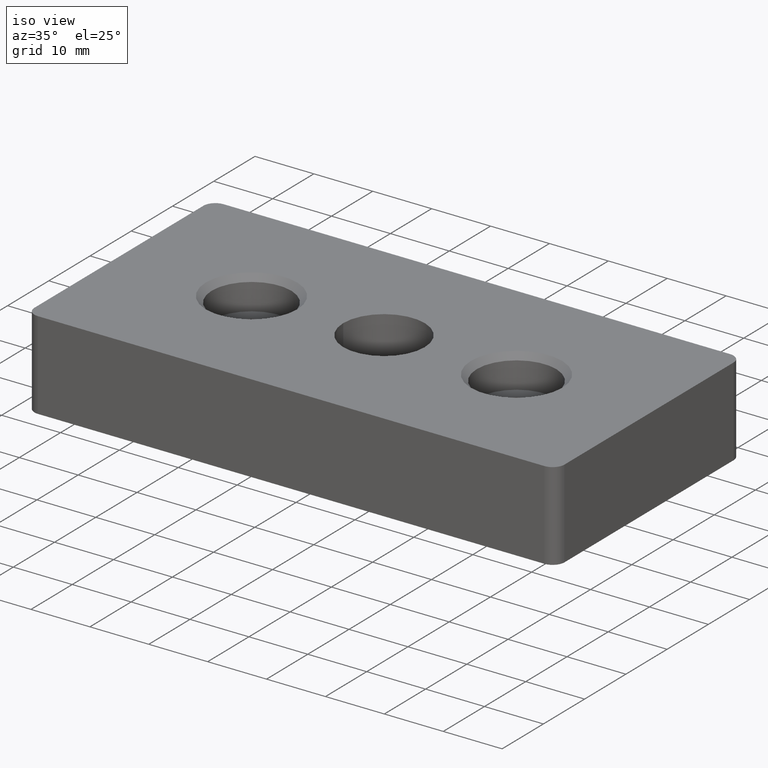
[diagram: clean part render]
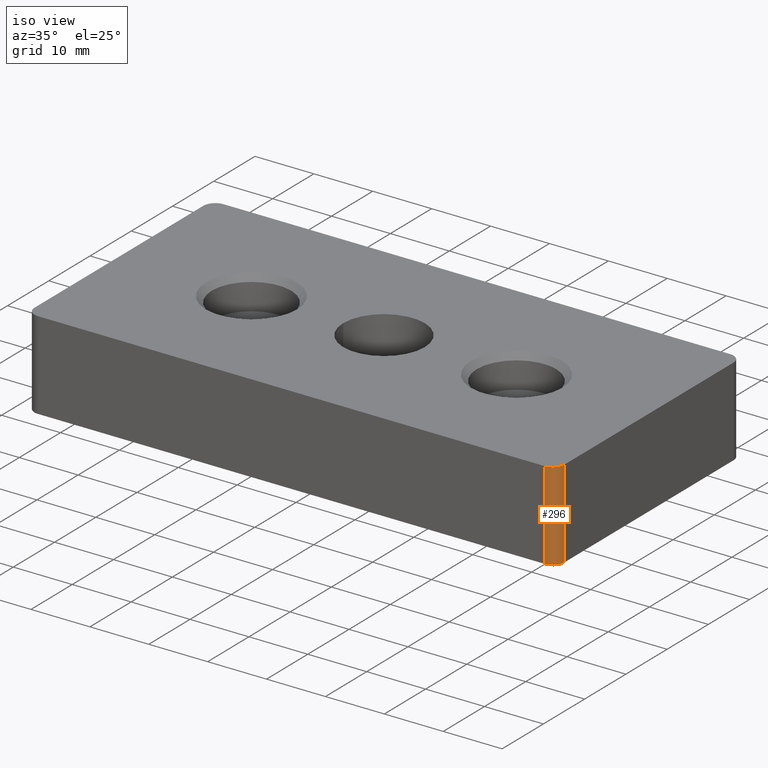
[diagram: same view with one face highlighted and labeled with its STEP entity id]
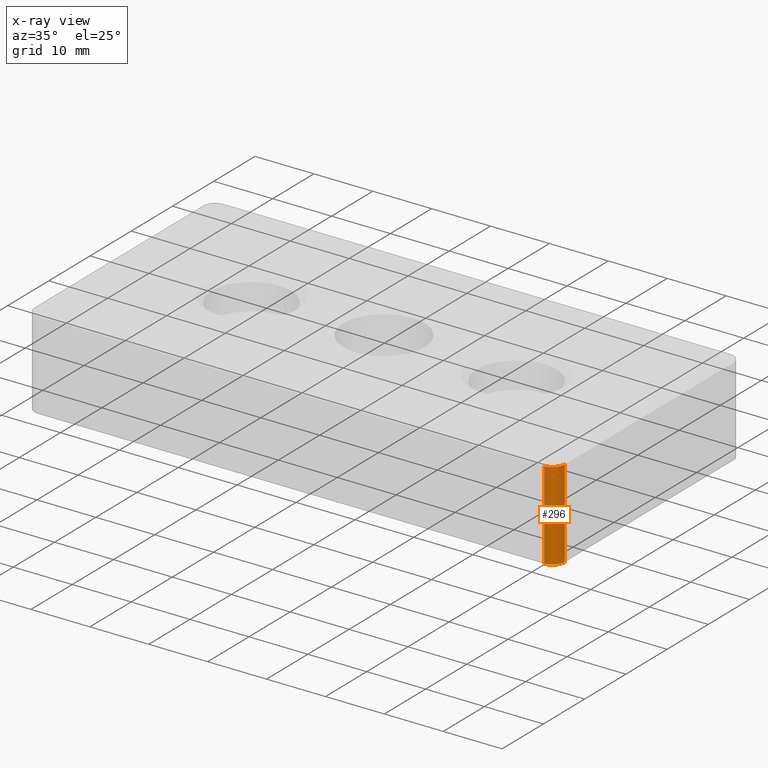
[diagram: x-ray of the same camera — body ghosted, the highlighted face saturated]
A machine part, iso view. The second image highlights one B-rep face of the part: STEP entity #296.
The next image is the same camera in x-ray: the body ghosted, the highlighted face saturated — about 0% of this face is hidden behind the body in this view.
In plain terms, the highlighted cylindrical surface (edge-blend (fillet) strip) has radius 2 mm, axis along (0, 0, 1).
Its self-contained STEP definition (entity closure, byte-faithful):
#18=CYLINDRICAL_SURFACE('',#329,2.);
#28=LINE('',#487,#44);
#29=LINE('',#490,#45);
#44=VECTOR('',#394,15.);
#45=VECTOR('',#397,15.);
#85=FACE_OUTER_BOUND('',#112,.T.);
#112=EDGE_LOOP('',(#237,#238,#239,#240));
#134=CIRCLE('',#315,2.);
#144=CIRCLE('',#330,2.);
#154=VERTEX_POINT('',#453);
#155=VERTEX_POINT('',#454);
#168=VERTEX_POINT('',#486);
#169=VERTEX_POINT('',#488);
#182=EDGE_CURVE('',#154,#155,#134,.T.);
#196=EDGE_CURVE('',#155,#168,#28,.T.);
#197=EDGE_CURVE('',#168,#169,#144,.T.);
#198=EDGE_CURVE('',#169,#154,#29,.T.);
#237=ORIENTED_EDGE('',*,*,#182,.T.);
#238=ORIENTED_EDGE('',*,*,#196,.T.);
#239=ORIENTED_EDGE('',*,*,#197,.T.);
#240=ORIENTED_EDGE('',*,*,#198,.T.);
#296=ADVANCED_FACE('',(#85),#18,.T.);
#315=AXIS2_PLACEMENT_3D('',#455,#360,#361);
#329=AXIS2_PLACEMENT_3D('',#485,#392,#393);
#330=AXIS2_PLACEMENT_3D('',#489,#395,#396);
#360=DIRECTION('center_axis',(0.,0.,-1.));
#361=DIRECTION('ref_axis',(0.707106781186549,-0.707106781186546,0.));
#392=DIRECTION('center_axis',(0.,0.,1.));
#393=DIRECTION('ref_axis',(0.707106781186549,-0.707106781186546,0.));
#394=DIRECTION('',(0.,0.,-1.));
#395=DIRECTION('center_axis',(0.,0.,1.));
#396=DIRECTION('ref_axis',(0.707106781186549,-0.707106781186546,0.));
#397=DIRECTION('',(0.,0.,1.));
#453=CARTESIAN_POINT('',(73.7824833985415,-7.43214636972642,15.));
#454=CARTESIAN_POINT('',(71.7824833985415,-9.43214636972642,15.));
#455=CARTESIAN_POINT('Origin',(71.7824833985415,-7.43214636972642,15.));
#485=CARTESIAN_POINT('Origin',(71.7824833985415,-7.43214636972642,0.));
#486=CARTESIAN_POINT('',(71.7824833985415,-9.43214636972642,0.));
#487=CARTESIAN_POINT('',(71.7824833985415,-9.43214636972642,15.));
#488=CARTESIAN_POINT('',(73.7824833985415,-7.43214636972642,0.));
#489=CARTESIAN_POINT('Origin',(71.7824833985415,-7.43214636972642,0.));
#490=CARTESIAN_POINT('',(73.7824833985415,-7.43214636972642,0.));